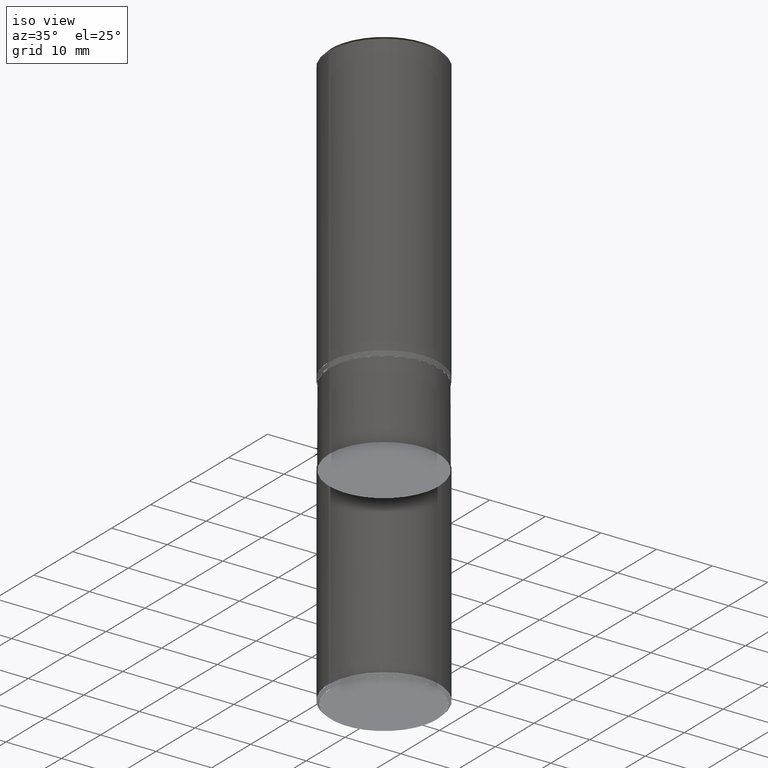
[diagram: clean part render]
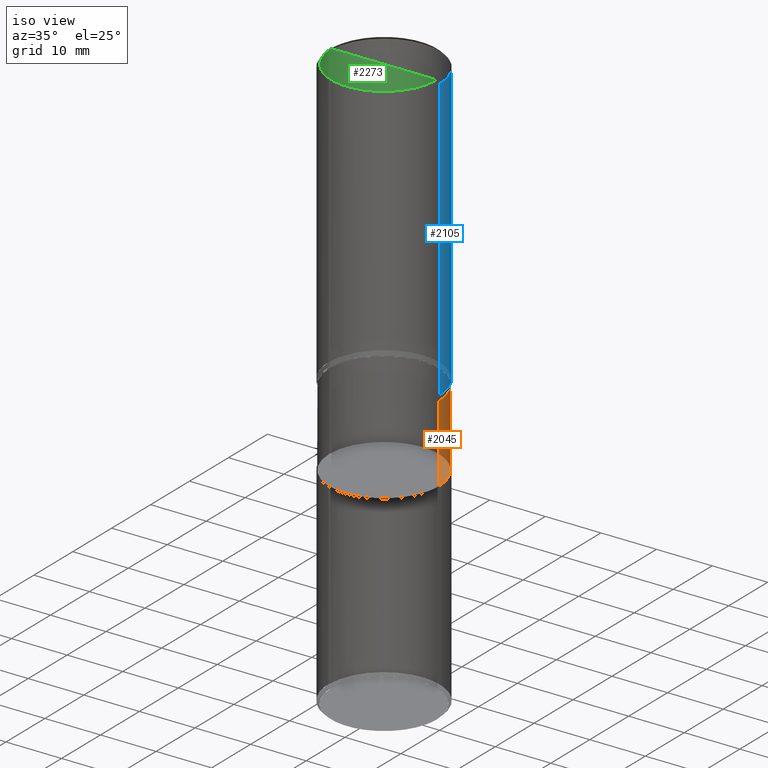
[diagram: same view with three faces highlighted in distinct colors, each labeled with its STEP entity id]
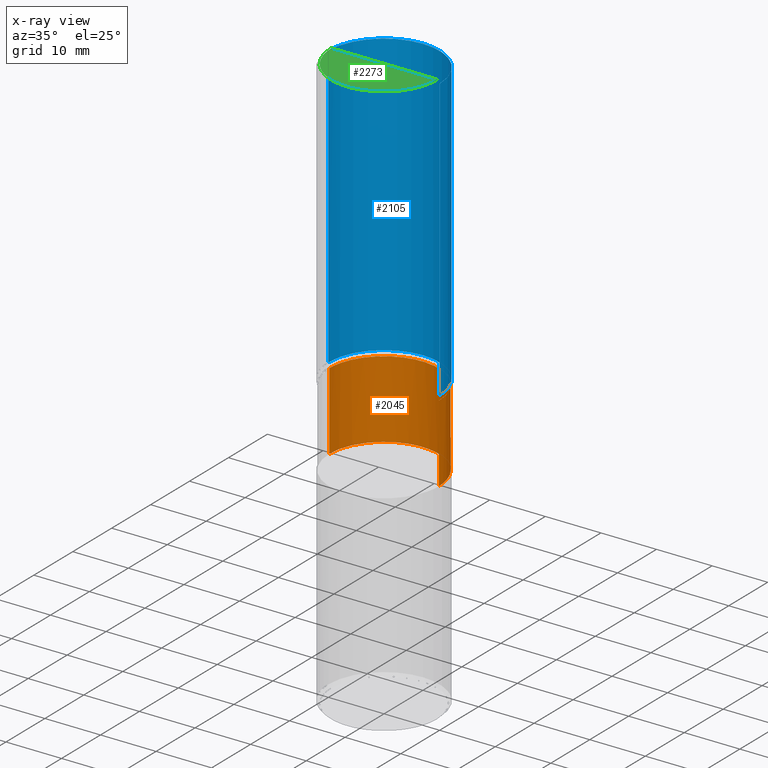
[diagram: x-ray of the same camera — body ghosted, the three highlighted faces saturated]
A machine part, iso view with three faces highlighted in distinct colors.
The next image is the same camera in x-ray (body ghosted, the three faces saturated) — at least one of them is partly hidden behind the body in this view.
Their STEP definitions:

[orange] entity #2045 — the highlighted face is a freeform B-spline surface patch.
#1798=CARTESIAN_POINT('',(9.85,0.0,-14.850692272943));
#1799=CARTESIAN_POINT('',(9.85,9.85,-14.850692272943));
#1800=CARTESIAN_POINT('',(0.0,9.85,-14.850692272943));
#1801=CARTESIAN_POINT('',(-9.85,9.85,-14.850692272943));
#1802=CARTESIAN_POINT('',(-9.85,0.0,-14.850692272943));
#1803=CARTESIAN_POINT('',(9.85,0.0,-0.938180936469));
#1804=CARTESIAN_POINT('',(9.85,9.85,-0.938180936469));
#1805=CARTESIAN_POINT('',(0.0,9.85,-0.938180936469));
#1806=CARTESIAN_POINT('',(-9.85,9.85,-0.938180936469));
#1807=CARTESIAN_POINT('',(-9.85,0.0,-0.938180936469));
#2026=(
BOUNDED_SURFACE()
B_SPLINE_SURFACE(1,2,(
(#1798,#1799,#1800,#1801,#1802),
(#1803,#1804,#1805,#1806,#1807)
), .UNSPECIFIED.,.F.,.F.,.F.)
B_SPLINE_SURFACE_WITH_KNOTS((2,2),(3,2,3),(
0.0,1.0),(
0.0,0.5,1.0), .UNSPECIFIED.)
GEOMETRIC_REPRESENTATION_ITEM()
RATIONAL_B_SPLINE_SURFACE(((1.0,0.707106781187,1.0,0.707106781187,1.0),
(1.0,0.707106781187,1.0,0.707106781187,1.0)
))
REPRESENTATION_ITEM('')
SURFACE()
);
#2027=(
BOUNDED_CURVE()
B_SPLINE_CURVE(2,(#1802,#1801,#1800,#1799,#1798),.UNSPECIFIED.,.F.,.F.)
B_SPLINE_CURVE_WITH_KNOTS((3,2,3),
(0.0,0.5,1.0),.UNSPECIFIED.)
CURVE()
GEOMETRIC_REPRESENTATION_ITEM()
RATIONAL_B_SPLINE_CURVE((1.0,0.707106781187,1.0,0.707106781187,1.0))
REPRESENTATION_ITEM('')
);
#2028=(
BOUNDED_CURVE()
B_SPLINE_CURVE(1,(#1798,#1803),.UNSPECIFIED.,.F.,.F.)
B_SPLINE_CURVE_WITH_KNOTS((2,2),
(0.0,1.0),.UNSPECIFIED.)
CURVE()
GEOMETRIC_REPRESENTATION_ITEM()
RATIONAL_B_SPLINE_CURVE((1.0,1.0))
REPRESENTATION_ITEM('')
);
#2029=(
BOUNDED_CURVE()
B_SPLINE_CURVE(2,(#1803,#1804,#1805,#1806,#1807),.UNSPECIFIED.,.F.,.F.)
B_SPLINE_CURVE_WITH_KNOTS((3,2,3),
(0.0,0.5,1.0),.UNSPECIFIED.)
CURVE()
GEOMETRIC_REPRESENTATION_ITEM()
RATIONAL_B_SPLINE_CURVE((1.0,0.707106781187,1.0,0.707106781187,1.0))
REPRESENTATION_ITEM('')
);
#2030=(
BOUNDED_CURVE()
B_SPLINE_CURVE(1,(#1807,#1802),.UNSPECIFIED.,.F.,.F.)
B_SPLINE_CURVE_WITH_KNOTS((2,2),
(0.0,1.0),.UNSPECIFIED.)
CURVE()
GEOMETRIC_REPRESENTATION_ITEM()
RATIONAL_B_SPLINE_CURVE((1.0,1.0))
REPRESENTATION_ITEM('')
);
#2031=VERTEX_POINT('',#1798);
#2032=VERTEX_POINT('',#1802);
#2033=VERTEX_POINT('',#1803);
#2034=VERTEX_POINT('',#1807);
#2035=EDGE_CURVE('',#2032,#2031,#2027,.T.);
#2036=EDGE_CURVE('',#2031,#2033,#2028,.T.);
#2037=EDGE_CURVE('',#2033,#2034,#2029,.T.);
#2038=EDGE_CURVE('',#2034,#2032,#2030,.T.);
#2039=ORIENTED_EDGE('',*,*,#2035,.T.);
#2040=ORIENTED_EDGE('',*,*,#2036,.T.);
#2041=ORIENTED_EDGE('',*,*,#2037,.T.);
#2042=ORIENTED_EDGE('',*,*,#2038,.T.);
#2043=EDGE_LOOP('',(#2039,#2040,#2041,#2042));
#2044=FACE_OUTER_BOUND('',#2043,.T.);
#2045=ADVANCED_FACE('',(#2044),#2026,.T.);

[blue] entity #2105 — the highlighted face is a freeform B-spline surface patch.
#1818=CARTESIAN_POINT('',(10.0,0.0,0.0));
#1819=CARTESIAN_POINT('',(10.0,10.0,0.0));
#1820=CARTESIAN_POINT('',(0.0,10.0,0.0));
#1821=CARTESIAN_POINT('',(-10.0,10.0,0.0));
#1822=CARTESIAN_POINT('',(-10.0,0.0,0.0));
#1823=CARTESIAN_POINT('',(10.0,0.0,50.649));
#1824=CARTESIAN_POINT('',(10.0,10.0,50.649));
#1825=CARTESIAN_POINT('',(0.0,10.0,50.649));
#1826=CARTESIAN_POINT('',(-10.0,10.0,50.649));
#1827=CARTESIAN_POINT('',(-10.0,0.0,50.649));
#2086=(
BOUNDED_SURFACE()
B_SPLINE_SURFACE(1,2,(
(#1818,#1819,#1820,#1821,#1822),
(#1823,#1824,#1825,#1826,#1827)
), .UNSPECIFIED.,.F.,.F.,.F.)
B_SPLINE_SURFACE_WITH_KNOTS((2,2),(3,2,3),(
0.0,1.0),(
0.0,0.5,1.0), .UNSPECIFIED.)
GEOMETRIC_REPRESENTATION_ITEM()
RATIONAL_B_SPLINE_SURFACE(((1.0,0.707106781187,1.0,0.707106781187,1.0),
(1.0,0.707106781187,1.0,0.707106781187,1.0)
))
REPRESENTATION_ITEM('')
SURFACE()
);
#2087=(
BOUNDED_CURVE()
B_SPLINE_CURVE(2,(#1822,#1821,#1820,#1819,#1818),.UNSPECIFIED.,.F.,.F.)
B_SPLINE_CURVE_WITH_KNOTS((3,2,3),
(0.0,0.5,1.0),.UNSPECIFIED.)
CURVE()
GEOMETRIC_REPRESENTATION_ITEM()
RATIONAL_B_SPLINE_CURVE((1.0,0.707106781187,1.0,0.707106781187,1.0))
REPRESENTATION_ITEM('')
);
#2088=(
BOUNDED_CURVE()
B_SPLINE_CURVE(1,(#1818,#1823),.UNSPECIFIED.,.F.,.F.)
B_SPLINE_CURVE_WITH_KNOTS((2,2),
(0.0,1.0),.UNSPECIFIED.)
CURVE()
GEOMETRIC_REPRESENTATION_ITEM()
RATIONAL_B_SPLINE_CURVE((1.0,1.0))
REPRESENTATION_ITEM('')
);
#2089=(
BOUNDED_CURVE()
B_SPLINE_CURVE(2,(#1823,#1824,#1825,#1826,#1827),.UNSPECIFIED.,.F.,.F.)
B_SPLINE_CURVE_WITH_KNOTS((3,2,3),
(0.0,0.5,1.0),.UNSPECIFIED.)
CURVE()
GEOMETRIC_REPRESENTATION_ITEM()
RATIONAL_B_SPLINE_CURVE((1.0,0.707106781187,1.0,0.707106781187,1.0))
REPRESENTATION_ITEM('')
);
#2090=(
BOUNDED_CURVE()
B_SPLINE_CURVE(1,(#1827,#1822),.UNSPECIFIED.,.F.,.F.)
B_SPLINE_CURVE_WITH_KNOTS((2,2),
(0.0,1.0),.UNSPECIFIED.)
CURVE()
GEOMETRIC_REPRESENTATION_ITEM()
RATIONAL_B_SPLINE_CURVE((1.0,1.0))
REPRESENTATION_ITEM('')
);
#2091=VERTEX_POINT('',#1818);
#2092=VERTEX_POINT('',#1822);
#2093=VERTEX_POINT('',#1823);
#2094=VERTEX_POINT('',#1827);
#2095=EDGE_CURVE('',#2092,#2091,#2087,.T.);
#2096=EDGE_CURVE('',#2091,#2093,#2088,.T.);
#2097=EDGE_CURVE('',#2093,#2094,#2089,.T.);
#2098=EDGE_CURVE('',#2094,#2092,#2090,.T.);
#2099=ORIENTED_EDGE('',*,*,#2095,.T.);
#2100=ORIENTED_EDGE('',*,*,#2096,.T.);
#2101=ORIENTED_EDGE('',*,*,#2097,.T.);
#2102=ORIENTED_EDGE('',*,*,#2098,.T.);
#2103=EDGE_LOOP('',(#2099,#2100,#2101,#2102));
#2104=FACE_OUTER_BOUND('',#2103,.T.);
#2105=ADVANCED_FACE('',(#2104),#2086,.T.);

[green] entity #2273 — the highlighted face is a freeform B-spline surface patch.
#1828=CARTESIAN_POINT('',(9.5,0.0,51.149));
#1832=CARTESIAN_POINT('',(-9.5,0.0,51.149));
#1833=CARTESIAN_POINT('',(0.0,0.0,51.149));
#1852=CARTESIAN_POINT('',(-9.5,-9.5,51.149));
#1853=CARTESIAN_POINT('',(0.0,-9.5,51.149));
#1854=CARTESIAN_POINT('',(9.5,-9.5,51.149));
#2258=(
BOUNDED_SURFACE()
B_SPLINE_SURFACE(1,2,(
(#1832,#1852,#1853,#1854,#1828),
(#1833,#1833,#1833,#1833,#1833)
), .UNSPECIFIED.,.F.,.F.,.F.)
B_SPLINE_SURFACE_WITH_KNOTS((2,2),(3,2,3),(
0.0,1.0),(
0.0,0.5,1.0), .UNSPECIFIED.)
GEOMETRIC_REPRESENTATION_ITEM()
RATIONAL_B_SPLINE_SURFACE(((1.0,0.707106781187,1.0,0.707106781187,1.0),
(1.0,0.707106781187,1.0,0.707106781187,1.0)
))
REPRESENTATION_ITEM('')
SURFACE()
);
#2259=(
BOUNDED_CURVE()
B_SPLINE_CURVE(2,(#1828,#1854,#1853,#1852,#1832),.UNSPECIFIED.,.F.,.F.)
B_SPLINE_CURVE_WITH_KNOTS((3,2,3),
(0.0,0.5,1.0),.UNSPECIFIED.)
CURVE()
GEOMETRIC_REPRESENTATION_ITEM()
RATIONAL_B_SPLINE_CURVE((1.0,0.707106781187,1.0,0.707106781187,1.0))
REPRESENTATION_ITEM('')
);
#2260=(
BOUNDED_CURVE()
B_SPLINE_CURVE(1,(#1832,#1833),.UNSPECIFIED.,.F.,.F.)
B_SPLINE_CURVE_WITH_KNOTS((2,2),
(0.0,1.0),.UNSPECIFIED.)
CURVE()
GEOMETRIC_REPRESENTATION_ITEM()
RATIONAL_B_SPLINE_CURVE((1.0,1.0))
REPRESENTATION_ITEM('')
);
#2261=(
BOUNDED_CURVE()
B_SPLINE_CURVE(1,(#1833,#1828),.UNSPECIFIED.,.F.,.F.)
B_SPLINE_CURVE_WITH_KNOTS((2,2),
(0.0,1.0),.UNSPECIFIED.)
CURVE()
GEOMETRIC_REPRESENTATION_ITEM()
RATIONAL_B_SPLINE_CURVE((1.0,1.0))
REPRESENTATION_ITEM('')
);
#2262=VERTEX_POINT('',#1828);
#2263=VERTEX_POINT('',#1832);
#2264=VERTEX_POINT('',#1833);
#2265=EDGE_CURVE('',#2262,#2263,#2259,.T.);
#2266=EDGE_CURVE('',#2263,#2264,#2260,.T.);
#2267=EDGE_CURVE('',#2264,#2262,#2261,.T.);
#2268=ORIENTED_EDGE('',*,*,#2265,.T.);
#2269=ORIENTED_EDGE('',*,*,#2266,.T.);
#2270=ORIENTED_EDGE('',*,*,#2267,.T.);
#2271=EDGE_LOOP('',(#2268,#2269,#2270));
#2272=FACE_OUTER_BOUND('',#2271,.T.);
#2273=ADVANCED_FACE('',(#2272),#2258,.T.);